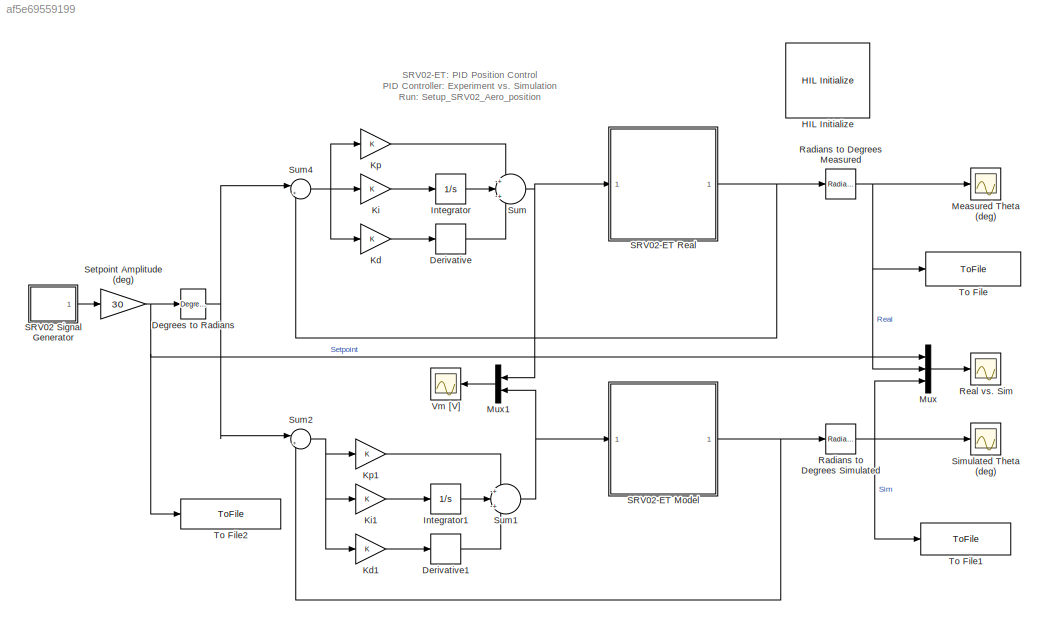
MODEL slx_af5e69559199
KIND model
CONFIG AbsTol = auto
CONFIG FixedStep = 0.001
CONFIG MaxStep = auto
CONFIG MinStep = auto
CONFIG RelTol = 1e-3
CONFIG SampleTimeConstraint = Unconstrained
CONFIG Solver = ode1
CONFIG SolverMode = Auto
CONFIG SolverName = ode1
CONFIG StartTime = 0.0
CONFIG StopTime = int
BLOCK [Reference] Degrees to Radians  REF=simulink_extras/Transformations/Degrees to
Radians
  Ports = [1, 1]
  SourceBlock = simulink_extras/Transformations/Degrees to\nRadians
  SourceType = DegreesToRadians
BLOCK [Derivative] Derivative
BLOCK [Derivative] Derivative1
BLOCK [Reference] HIL Initialize  REF=quarc_library/Data Acquisition/Generic/Configuration/HIL Initialize
  AttributesFormatString = %<object_name> (%<board_type>-%<board_number>)
  Ports = []
  SourceBlock = quarc_library/Data Acquisition/Generic/Configuration/HIL Initialize
  SourceType = HIL Initialize
  UserDataPersistent = on
BLOCK [Integrator] Integrator
  Ports = [1, 1]
BLOCK [Integrator] Integrator1
  Ports = [1, 1]
BLOCK [Gain] Kd
  OutDataTypeStr = Inherit: Inherit via internal rule
  ParamDataTypeStr = Inherit: Inherit via internal rule
  SaturateOnIntegerOverflow = off
BLOCK [Gain] Kd1
  OutDataTypeStr = Inherit: Inherit via internal rule
  ParamDataTypeStr = Inherit: Inherit via internal rule
  SaturateOnIntegerOverflow = off
BLOCK [Gain] Ki
  OutDataTypeStr = Inherit: Inherit via internal rule
  ParamDataTypeStr = Inherit: Inherit via internal rule
  SaturateOnIntegerOverflow = off
BLOCK [Gain] Ki1
  OutDataTypeStr = Inherit: Inherit via internal rule
  ParamDataTypeStr = Inherit: Inherit via internal rule
  SaturateOnIntegerOverflow = off
BLOCK [Gain] Kp
  OutDataTypeStr = Inherit: Inherit via internal rule
  ParamDataTypeStr = Inherit: Inherit via internal rule
  SaturateOnIntegerOverflow = off
BLOCK [Gain] Kp1
  OutDataTypeStr = Inherit: Inherit via internal rule
  ParamDataTypeStr = Inherit: Inherit via internal rule
  SaturateOnIntegerOverflow = off
BLOCK [Scope] Measured Theta (deg)
  Ports = [1]
  ScopeSpecificationString = C++SS(StrPVP('Location','[188, 390, 512, 629]'),StrPVP('Open','off'),MxPVP('AxesTitles',24,'struct(''axes1'',''%<SignalLabel>'')'),MxPVP('ScopeGraphics',28,'struct(''FigureColor'',''[0.5 0.5 0.5]'',''AxesColor'',''[0 0 0]'',''AxesTickColor'',''[1 1 1]'',''LineColors'',''[1 1 0;1 0 1;0 1 1;1 0 0;0 1 0;0 0 1]'',''LineStyles'',''-|-|-|-|-|-'',''LineWidths'',''[0.5 0.5 0.5 0.5 0.5 0.5]'',''MarkerStyle...<+313ch>
BLOCK [Mux] Mux
  DisplayOption = bar
  Inputs = 3
  Ports = [3, 1]
BLOCK [Mux] Mux1
  DisplayOption = bar
  Inputs = 2
  Ports = [2, 1]
BLOCK [Reference] Radians to  Degrees Simulated  REF=simulink_extras/Transformations/Radians
to Degrees
  Ports = [1, 1]
  SourceBlock = simulink_extras/Transformations/Radians\nto Degrees
  SourceType = RadiansToDegrees
BLOCK [Reference] Radians to Degrees Measured  REF=simulink_extras/Transformations/Radians
to Degrees
  Ports = [1, 1]
  SourceBlock = simulink_extras/Transformations/Radians\nto Degrees
  SourceType = RadiansToDegrees
BLOCK [Scope] Real vs. Sim 
  Ports = [1]
  ScopeSpecificationString = Simulink.scopes.TimeScopeBlockCfg('CurrentConfiguration', extmgr.ConfigurationSet(extmgr.Configuration('Core','General UI',true,'FigureColor',[0.501960784313725 0.501960784313725 0.501960784313725]),extmgr.Configuration('Core','Source UI',true),extmgr.Configuration('Sources','WiredSimulink',true,'DataLoggingSaveFormat','StructureWithTime','DataLoggingDecimation','1','DataLoggingDecimateData',true)...<+2772ch>
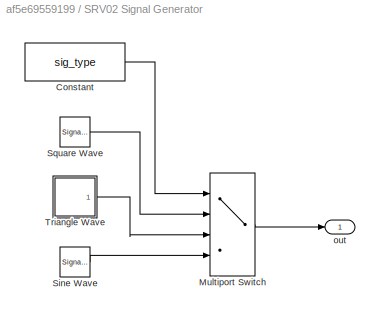
BLOCK [SubSystem] SRV02 Signal Generator
  Ports = [0, 1]
  RequestExecContextInheritance = off
  Variant = off
BLOCK [Constant] SRV02 Signal Generator/Constant
  Value = sig_type
BLOCK [MultiPortSwitch] SRV02 Signal Generator/Multiport Switch
  InputSameDT = off
  Ports = [4, 1]
  SaturateOnIntegerOverflow = off
BLOCK [SignalGenerator] SRV02 Signal Generator/Sine Wave
  Amplitude = a
  Frequency = f
  Ports = [0, 1]
BLOCK [SignalGenerator] SRV02 Signal Generator/Square Wave
  Amplitude = a
  Frequency = f
  Ports = [0, 1]
  WaveForm = square
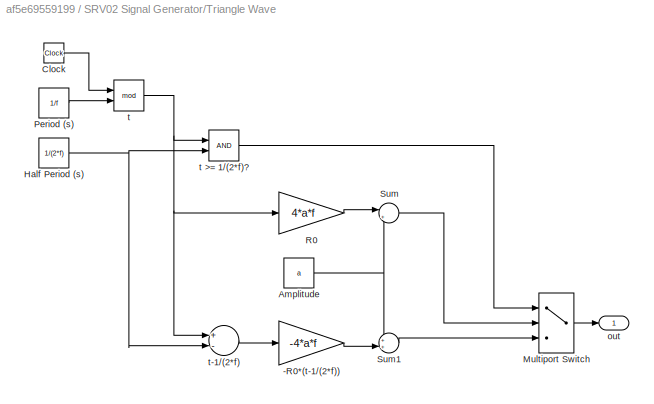
BLOCK [SubSystem] SRV02 Signal Generator/Triangle Wave
  Ports = [0, 1]
  RequestExecContextInheritance = off
  Variant = off
BLOCK [Gain] SRV02 Signal Generator/Triangle Wave/-R0*(t-1//(2*f))
  Gain = -4*a*f
  OutDataTypeStr = Inherit: Inherit via internal rule
  ParamDataTypeStr = Inherit: Inherit via internal rule
  SaturateOnIntegerOverflow = off
BLOCK [Constant] SRV02 Signal Generator/Triangle Wave/Amplitude
  Value = a
BLOCK [Clock] SRV02 Signal Generator/Triangle Wave/Clock
BLOCK [Constant] SRV02 Signal Generator/Triangle Wave/Half Period (s)
  Value = 1/(2*f)
BLOCK [MultiPortSwitch] SRV02 Signal Generator/Triangle Wave/Multiport Switch
  DataPortOrder = Zero-based contiguous
  InputSameDT = off
  Inputs = 2
  Ports = [3, 1]
  SaturateOnIntegerOverflow = off
  zeroidx = on
BLOCK [Constant] SRV02 Signal Generator/Triangle Wave/Period (s)
  Value = 1/f
BLOCK [Gain] SRV02 Signal Generator/Triangle Wave/R0
  Gain = 4*a*f
  OutDataTypeStr = Inherit: Inherit via internal rule
  ParamDataTypeStr = Inherit: Inherit via internal rule
  SaturateOnIntegerOverflow = off
BLOCK [Sum] SRV02 Signal Generator/Triangle Wave/Sum
  IconShape = round
  InputSameDT = off
  Inputs = |+-
  OutDataTypeStr = Inherit: Inherit via internal rule
  Ports = [2, 1]
  SaturateOnIntegerOverflow = off
BLOCK [Sum] SRV02 Signal Generator/Triangle Wave/Sum1
  IconShape = round
  InputSameDT = off
  Inputs = ++|
  OutDataTypeStr = Inherit: Inherit via internal rule
  Ports = [2, 1]
  SaturateOnIntegerOverflow = off
BLOCK [Outport] SRV02 Signal Generator/Triangle Wave/out
  IconDisplay = Port number
BLOCK [Math] SRV02 Signal Generator/Triangle Wave/t
  Operator = mod
  Ports = [2, 1]
BLOCK [RelationalOperator] SRV02 Signal Generator/Triangle Wave/t >= 1//(2*f)?
  InputSameDT = off
  OutDataTypeStr = boolean
  Ports = [2, 1]
BLOCK [Sum] SRV02 Signal Generator/Triangle Wave/t-1//(2*f)
  InputSameDT = off
  Inputs = +-
  OutDataTypeStr = Inherit: Inherit via internal rule
  Ports = [2, 1]
  SaturateOnIntegerOverflow = off
BLOCK [Outport] SRV02 Signal Generator/out
  IconDisplay = Port number
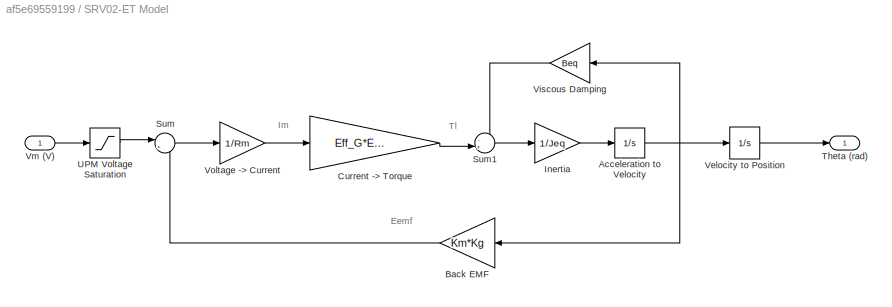
BLOCK [SubSystem] SRV02-ET Model 
  Ports = [1, 1]
  RequestExecContextInheritance = off
  Variant = off
BLOCK [Integrator] SRV02-ET Model /Acceleration to Velocity
  Ports = [1, 1]
BLOCK [Gain] SRV02-ET Model /Back EMF
  Gain = Km*Kg
BLOCK [Gain] SRV02-ET Model /Current -> Torque
  Gain = Eff_G*Eff_M*Kt*Kg
BLOCK [Gain] SRV02-ET Model /Inertia
  Gain = 1/Jeq
BLOCK [Sum] SRV02-ET Model /Sum
  IconShape = round
  Inputs = |+-
  Ports = [2, 1]
BLOCK [Sum] SRV02-ET Model /Sum1
  IconShape = round
  Inputs = -+|
  Ports = [2, 1]
BLOCK [Outport] SRV02-ET Model /Theta (rad)
  IconDisplay = Port number
BLOCK [Saturate] SRV02-ET Model /UPM Voltage Saturation 
  InputPortMap = u0
  LowerLimit = -VMAX_UPM
  Ports = [1, 1]
  UpperLimit = VMAX_UPM
BLOCK [Integrator] SRV02-ET Model /Velocity to Position
  Ports = [1, 1]
BLOCK [Gain] SRV02-ET Model /Viscous Damping
  Gain = Beq
BLOCK [Inport] SRV02-ET Model /Vm (V)
  IconDisplay = Port number
BLOCK [Gain] SRV02-ET Model /Voltage -> Current
  Gain = 1/Rm
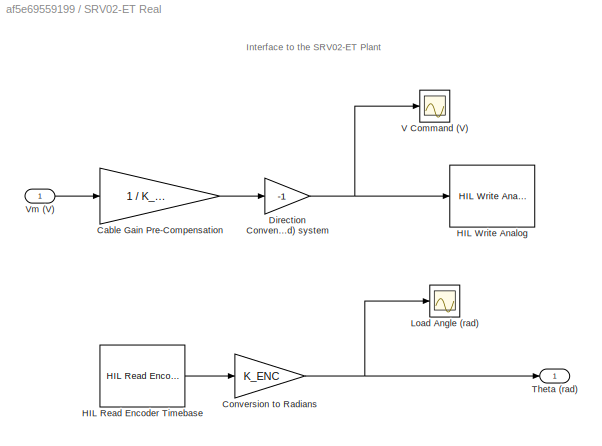
BLOCK [SubSystem] SRV02-ET Real 
  Ports = [1, 1]
  RequestExecContextInheritance = off
  Variant = off
BLOCK [Gain] SRV02-ET Real /Cable Gain Pre-Compensation
  Gain = 1 / K_CABLE
BLOCK [Gain] SRV02-ET Real /Conversion to Radians
  Gain = K_ENC
BLOCK [Gain] SRV02-ET Real /Direction Convention: (Right-Hand) system
  Gain = -1
BLOCK [Reference] SRV02-ET Real /HIL Read Encoder Timebase  REF=quarc_library/Data Acquisition/Generic/Timebases/HIL Read Encoder
Timebase
  AttributesFormatString = (%<object_name>)
  Ports = [0, 1]
  SourceBlock = quarc_library/Data Acquisition/Generic/Timebases/HIL Read Encoder\nTimebase
  SourceType = HIL Read Encoder Timebase
  UserDataPersistent = on
BLOCK [Reference] SRV02-ET Real /HIL Write Analog  REF=quarc_library/Data Acquisition/Generic/Immediate I//O/HIL Write Analog
  AttributesFormatString = (%<object_name>)
  Ports = [1]
  SourceBlock = quarc_library/Data Acquisition/Generic/Immediate I//O/HIL Write Analog
  SourceType = HIL Write Analog
  UserDataPersistent = on
BLOCK [Scope] SRV02-ET Real /Load Angle (rad)
  Ports = [1]
  ScopeSpecificationString = C++SS(StrPVP('Location','[188, 390, 512, 629]'),StrPVP('Open','off'),MxPVP('AxesTitles',24,'struct(''axes1'',''%<SignalLabel>'')'),StrPVP('ShowLegends','off'),StrPVP('SaveName','ScopeData4'),StrPVP('DataFormat','StructureWithTime'),StrPVP('BlockParamSampleTime','0'),StrPVP('LimitDataPoints','on'),StrPVP('Decimation','1'),StrPVP('BlockParamSampleInput','off'))
BLOCK [Outport] SRV02-ET Real /Theta (rad)
  IconDisplay = Port number
  InitialOutput = 0
BLOCK [Scope] SRV02-ET Real /V Command (V)
  Ports = [1]
  ScopeSpecificationString = C++SS(StrPVP('Location','[188, 390, 512, 629]'),StrPVP('Open','off'),MxPVP('AxesTitles',24,'struct(''axes1'',''%<SignalLabel>'')'),StrPVP('ShowLegends','off'),StrPVP('YMin','-15'),StrPVP('YMax','15'),StrPVP('SaveName','ScopeData1'),StrPVP('DataFormat','StructureWithTime'),StrPVP('BlockParamSampleTime','0'),StrPVP('LimitDataPoints','on'),StrPVP('Decimation','1'),StrPVP('BlockParamSampleInput','off'...<+2ch>
BLOCK [Inport] SRV02-ET Real /Vm (V)
  IconDisplay = Port number
BLOCK [Gain] Setpoint Amplitude (deg)
  Gain = 30
BLOCK [Scope] Simulated Theta (deg)
  Ports = [1]
  ScopeSpecificationString = C++SS(StrPVP('Location','[188, 390, 512, 629]'),StrPVP('Open','off'),MxPVP('AxesTitles',24,'struct(''axes1'',''%<SignalLabel>'')'),StrPVP('ShowLegends','off'),StrPVP('YMin','-30'),StrPVP('YMax','30'),StrPVP('SaveName','ScopeData2'),StrPVP('DataFormat','StructureWithTime'),StrPVP('LimitDataPoints','off'),StrPVP('BlockParamSampleTime','0'),StrPVP('Decimation','1'),StrPVP('BlockParamSampleInput','off...<+3ch>
BLOCK [Sum] Sum
  IconShape = round
  InputSameDT = off
  Inputs = +|+|+
  OutDataTypeStr = Inherit: Inherit via internal rule
  Ports = [3, 1]
  SaturateOnIntegerOverflow = off
BLOCK [Sum] Sum1
  IconShape = round
  InputSameDT = off
  Inputs = +|+|+
  OutDataTypeStr = Inherit: Inherit via internal rule
  Ports = [3, 1]
  SaturateOnIntegerOverflow = off
BLOCK [Sum] Sum2
  IconShape = round
  Inputs = |+-
  Ports = [2, 1]
BLOCK [Sum] Sum4
  IconShape = round
  Inputs = |+-
  Ports = [2, 1]
BLOCK [ToFile] To File
  Filename = Theta_measured.mat
  MatrixName = position_meas
  Ports = [1]
BLOCK [ToFile] To File1
  Filename = Theta_simulated.mat
  MatrixName = position_sim
  Ports = [1]
BLOCK [ToFile] To File2
  Filename = Theta_setpoint.mat
  MatrixName = setpoint
  Ports = [1]
BLOCK [Scope] Vm [V]
  Ports = [1]
  ScopeSpecificationString = C++SS(StrPVP('Location','[773, 275, 1250, 602]'),StrPVP('Open','off'),MxPVP('AxesTitles',24,'struct(''axes1'',''%<SignalLabel>'')'),MxPVP('ScopeGraphics',28,'struct(''FigureColor'',''[0.5 0.5 0.5]'',''AxesColor'',''[0 0 0]'',''AxesTickColor'',''[1 1 1]'',''LineColors'',''[1 1 0;1 0 1;0 1 1;1 0 0;0 1 0;0 0 1]'',''LineStyles'',''-|-|-|-|-|-'',''LineWidths'',''[0.5 0.5 0.5 0.5 0.5 0.5]'',''MarkerStyl...<+339ch>
ANNOTATION (root): SRV02-ET: PID Position Control PID Controller: Experiment vs. Simulation Run: Setup_SRV02_Aero_position
ANNOTATION SRV02-ET Model : Eemf
ANNOTATION SRV02-ET Model : Im
ANNOTATION SRV02-ET Model : Tl
ANNOTATION SRV02-ET Real : Interface to the SRV02-ET Plant
NET Degrees to Radians:1 -> Sum2:1, Sum4:1
LINE Derivative1:1 -> Sum1:3
LINE Derivative:1 -> Sum:3
LINE Integrator1:1 -> Sum1:2
LINE Integrator:1 -> Sum:2
LINE Kd1:1 -> Derivative1:1
LINE Kd:1 -> Derivative:1
LINE Ki1:1 -> Integrator1:1
LINE Ki:1 -> Integrator:1
LINE Kp1:1 -> Sum1:1
LINE Kp:1 -> Sum:1
LINE Mux1:1 -> Vm [V]:1
LINE Mux:1 -> Real vs. Sim :1
NET Radians to  Degrees Simulated:1 -> Mux:3, Simulated Theta (deg):1, To File1:1
NET Radians to Degrees Measured:1 -> Measured Theta (deg):1, Mux:2, To File:1
LINE SRV02 Signal Generator/Constant:1 -> SRV02 Signal Generator/Multiport Switch:1
LINE SRV02 Signal Generator/Multiport Switch:1 -> SRV02 Signal Generator/out:1
LINE SRV02 Signal Generator/Sine Wave:1 -> SRV02 Signal Generator/Multiport Switch:4
LINE SRV02 Signal Generator/Square Wave:1 -> SRV02 Signal Generator/Multiport Switch:2
LINE SRV02 Signal Generator/Triangle Wave/-R0*(t-1//(2*f)):1 -> SRV02 Signal Generator/Triangle Wave/Sum1:2
NET SRV02 Signal Generator/Triangle Wave/Amplitude:1 -> SRV02 Signal Generator/Triangle Wave/Sum1:1, SRV02 Signal Generator/Triangle Wave/Sum:2
LINE SRV02 Signal Generator/Triangle Wave/Clock:1 -> SRV02 Signal Generator/Triangle Wave/t:1
NET SRV02 Signal Generator/Triangle Wave/Half Period (s):1 -> SRV02 Signal Generator/Triangle Wave/t >= 1//(2*f)?:2, SRV02 Signal Generator/Triangle Wave/t-1//(2*f):2
LINE SRV02 Signal Generator/Triangle Wave/Multiport Switch:1 -> SRV02 Signal Generator/Triangle Wave/out:1
LINE SRV02 Signal Generator/Triangle Wave/Period (s):1 -> SRV02 Signal Generator/Triangle Wave/t:2
LINE SRV02 Signal Generator/Triangle Wave/R0:1 -> SRV02 Signal Generator/Triangle Wave/Sum:1
LINE SRV02 Signal Generator/Triangle Wave/Sum1:1 -> SRV02 Signal Generator/Triangle Wave/Multiport Switch:3
LINE SRV02 Signal Generator/Triangle Wave/Sum:1 -> SRV02 Signal Generator/Triangle Wave/Multiport Switch:2
LINE SRV02 Signal Generator/Triangle Wave/t >= 1//(2*f)?:1 -> SRV02 Signal Generator/Triangle Wave/Multiport Switch:1
LINE SRV02 Signal Generator/Triangle Wave/t-1//(2*f):1 -> SRV02 Signal Generator/Triangle Wave/-R0*(t-1//(2*f)):1
NET SRV02 Signal Generator/Triangle Wave/t:1 -> SRV02 Signal Generator/Triangle Wave/R0:1, SRV02 Signal Generator/Triangle Wave/t >= 1//(2*f)?:1, SRV02 Signal Generator/Triangle Wave/t-1//(2*f):1
LINE SRV02 Signal Generator/Triangle Wave:1 -> SRV02 Signal Generator/Multiport Switch:3
LINE SRV02 Signal Generator:1 -> Setpoint Amplitude (deg):1
NET SRV02-ET Model /Acceleration to Velocity:1 -> SRV02-ET Model /Back EMF:1, SRV02-ET Model /Velocity to Position:1, SRV02-ET Model /Viscous Damping:1
LINE SRV02-ET Model /Back EMF:1 -> SRV02-ET Model /Sum:2
LINE SRV02-ET Model /Current -> Torque:1 -> SRV02-ET Model /Sum1:2
LINE SRV02-ET Model /Inertia:1 -> SRV02-ET Model /Acceleration to Velocity:1
LINE SRV02-ET Model /Sum1:1 -> SRV02-ET Model /Inertia:1
LINE SRV02-ET Model /Sum:1 -> SRV02-ET Model /Voltage -> Current:1
LINE SRV02-ET Model /UPM Voltage Saturation :1 -> SRV02-ET Model /Sum:1
LINE SRV02-ET Model /Velocity to Position:1 -> SRV02-ET Model /Theta (rad):1
LINE SRV02-ET Model /Viscous Damping:1 -> SRV02-ET Model /Sum1:1
LINE SRV02-ET Model /Vm (V):1 -> SRV02-ET Model /UPM Voltage Saturation :1
LINE SRV02-ET Model /Voltage -> Current:1 -> SRV02-ET Model /Current -> Torque:1
NET SRV02-ET Model :1 -> Radians to  Degrees Simulated:1, Sum2:2
LINE SRV02-ET Real /Cable Gain Pre-Compensation:1 -> SRV02-ET Real /Direction Convention: (Right-Hand) system:1
NET SRV02-ET Real /Conversion to Radians:1 -> SRV02-ET Real /Load Angle (rad):1, SRV02-ET Real /Theta (rad):1
NET SRV02-ET Real /Direction Convention: (Right-Hand) system:1 -> SRV02-ET Real /HIL Write Analog:1, SRV02-ET Real /V Command (V):1
LINE SRV02-ET Real /HIL Read Encoder Timebase:1 -> SRV02-ET Real /Conversion to Radians:1
LINE SRV02-ET Real /Vm (V):1 -> SRV02-ET Real /Cable Gain Pre-Compensation:1
NET SRV02-ET Real :1 -> Radians to Degrees Measured:1, Sum4:2
NET Setpoint Amplitude (deg):1 -> Degrees to Radians:1, Mux:1, To File2:1
NET Sum1:1 -> Mux1:2, SRV02-ET Model :1
NET Sum2:1 -> Kd1:1, Ki1:1, Kp1:1
NET Sum4:1 -> Kd:1, Ki:1, Kp:1
NET Sum:1 -> Mux1:1, SRV02-ET Real :1
note: NET lines group one-source signal fan-out (src -> all destinations, sorted); 1:1 wires keep LINE
